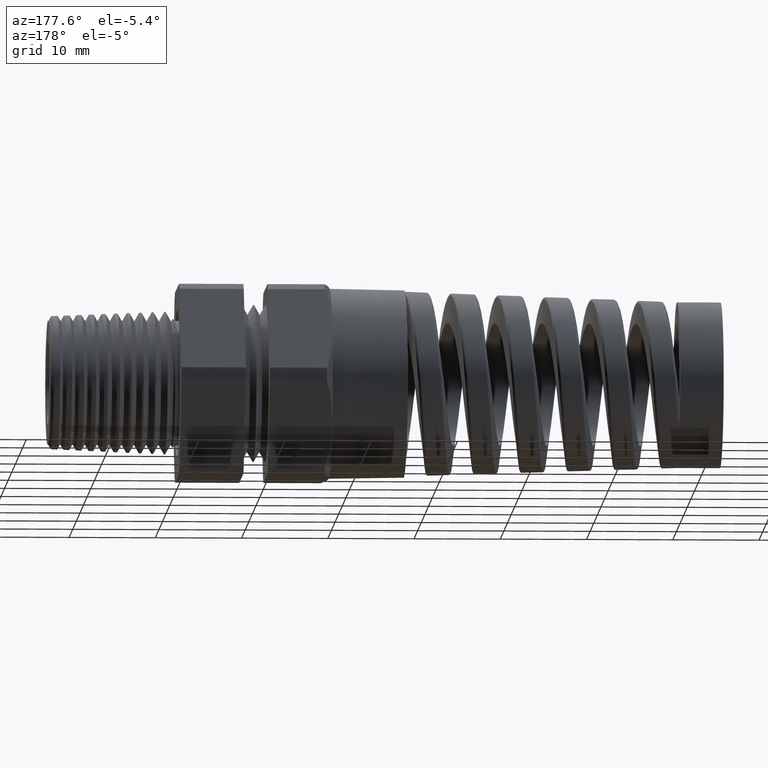
[diagram: clean part render]
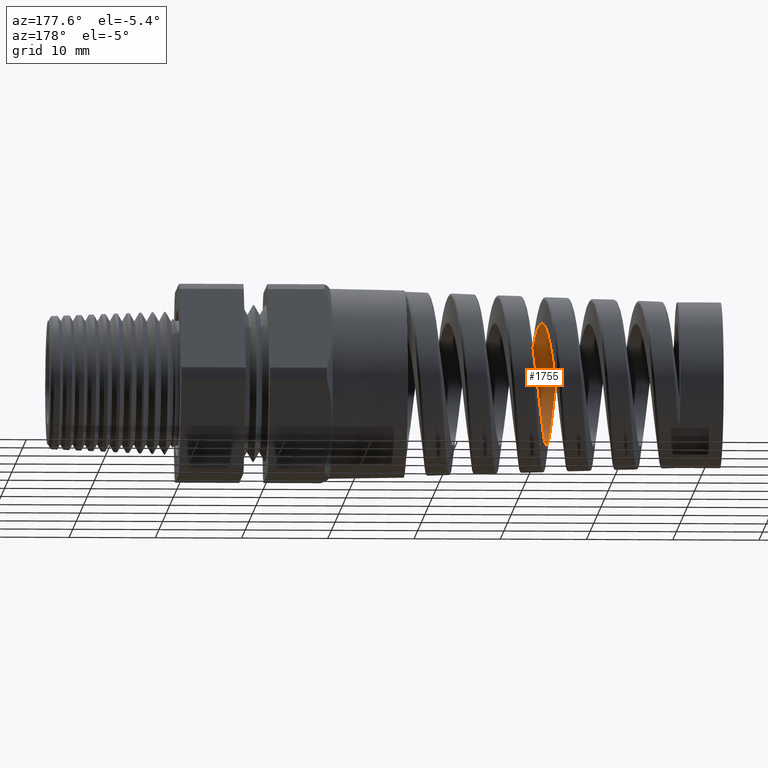
[diagram: same view with one face highlighted and labeled with its STEP entity id]
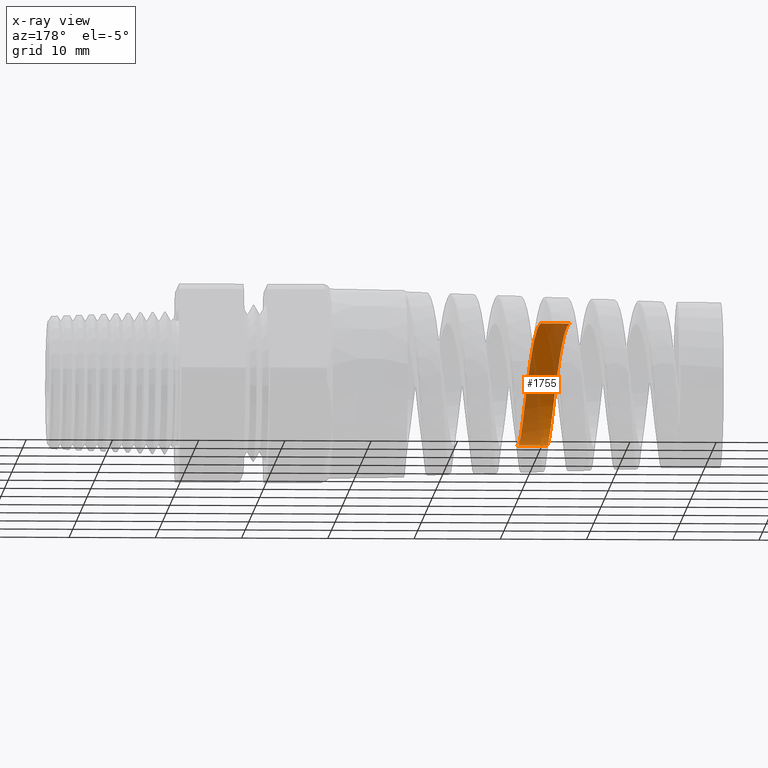
[diagram: x-ray of the same camera — body ghosted, the highlighted face saturated]
A machine part, auxiliary view. The second image highlights one B-rep face of the part: STEP entity #1755.
The next image is the same camera in x-ray: the body ghosted, the highlighted face saturated — about 49% of this face is hidden behind the body in this view.
In plain terms, the highlighted cylindrical surface (partial cylindrical patch) has radius 7.1002 mm, axis along (1, 0, 0).
Its self-contained STEP definition (entity closure, byte-faithful):
#1172 = EDGE_LOOP ( 'NONE', ( #1756, #7995, #7989, #7992 ) ) ;
#1755 = ADVANCED_FACE ( 'NONE', ( #10173 ), #10172, .F. ) ;
#1756 = ORIENTED_EDGE ( 'NONE', *, *, #1757, .F. ) ;
#1757 = EDGE_CURVE ( 'NONE', #1758, #1759, #10278, .T. ) ;
#1758 = VERTEX_POINT ( 'NONE', #10279 ) ;
#1759 = VERTEX_POINT ( 'NONE', #10277 ) ;
#7988 = EDGE_CURVE ( 'NONE', #1759, #7990, #11279, .T. ) ;
#7989 = ORIENTED_EDGE ( 'NONE', *, *, #7993, .F. ) ;
#7990 = VERTEX_POINT ( 'NONE', #11275 ) ;
#7991 = VERTEX_POINT ( 'NONE', #11274 ) ;
#7992 = ORIENTED_EDGE ( 'NONE', *, *, #7988, .F. ) ;
#7993 = EDGE_CURVE ( 'NONE', #7990, #7991, #11273, .T. ) ;
#7994 = EDGE_CURVE ( 'NONE', #1758, #7991, #11228, .T. ) ;
#7995 = ORIENTED_EDGE ( 'NONE', *, *, #7994, .T. ) ;
#10167 = DIRECTION ( 'NONE',  ( 0.0000000000000000000, 0.0000000000000000000, -1.000000000000000000 ) ) ;
#10168 = DIRECTION ( 'NONE',  ( 1.000000000000000000, 0.0000000000000000000, 0.0000000000000000000 ) ) ;
#10169 = AXIS2_PLACEMENT_3D ( 'NONE', #10178, #10168, #10167 ) ;
#10172 = CYLINDRICAL_SURFACE ( 'NONE', #10169, 0.2795341310835476300 ) ;
#10173 = FACE_OUTER_BOUND ( 'NONE', #1172, .T. ) ;
#10178 = CARTESIAN_POINT ( 'NONE',  ( 0.4924815508901369000, 0.0000000000000000000, 0.0000000000000000000 ) ) ;
#10239 = CARTESIAN_POINT ( 'NONE',  ( -1.702713394583856400, -0.1397945371092218200, -0.2422418349943530600 ) ) ;
#10240 = CARTESIAN_POINT ( 'NONE',  ( -1.703839217421740700, -0.1477465002848136500, -0.2374747197051904600 ) ) ;
#10241 = CARTESIAN_POINT ( 'NONE',  ( -1.707183106179958500, -0.1705959400540476600, -0.2221983737497883200 ) ) ;
#10242 = CARTESIAN_POINT ( 'NONE',  ( -1.709391981593069800, -0.1846722046573891500, -0.2106405381590640300 ) ) ;
#10243 = CARTESIAN_POINT ( 'NONE',  ( -1.713842343556300400, -0.2105233505997014500, -0.1848057854647303700 ) ) ;
#10244 = CARTESIAN_POINT ( 'NONE',  ( -1.716093657461465100, -0.2223324716631633900, -0.1704124293647409100 ) ) ;
#10245 = CARTESIAN_POINT ( 'NONE',  ( -1.720524442096653000, -0.2425948723689597700, -0.1400708818353490800 ) ) ;
#10246 = CARTESIAN_POINT ( 'NONE',  ( -1.722726339981393700, -0.2511977423296650700, -0.1240034296068515300 ) ) ;
#10247 = CARTESIAN_POINT ( 'NONE',  ( -1.726077921545133400, -0.2617533567761192200, -0.09853409117333299100 ) ) ;
#10248 = CARTESIAN_POINT ( 'NONE',  ( -1.727203407638249600, -0.2648717340536175800, -0.08981145926629738300 ) ) ;
#10249 = CARTESIAN_POINT ( 'NONE',  ( -1.729431991964394100, -0.2701803372228048800, -0.07228913538204460900 ) ) ;
#10250 = CARTESIAN_POINT ( 'NONE',  ( -1.731650726673886800, -0.2746033445902247800, -0.05459546316220997100 ) ) ;
#10251 = CARTESIAN_POINT ( 'NONE',  ( -1.733868417200032000, -0.2772828826278498900, -0.03656674284231651400 ) ) ;
#10252 = CARTESIAN_POINT ( 'NONE',  ( -1.736093449546979500, -0.2790797195856177200, -0.01836937115197610800 ) ) ;
#10253 = CARTESIAN_POINT ( 'NONE',  ( -1.737214767104330100, -0.2795362515429912200, -0.009142621706091723400 ) ) ;
#10254 = CARTESIAN_POINT ( 'NONE',  ( -1.740570495408392300, -0.2795298677681128900, 0.01847905671585857400 ) ) ;
#10255 = CARTESIAN_POINT ( 'NONE',  ( -1.742773128754881600, -0.2777233592006827500, 0.03662523520993329900 ) ) ;
#10256 = CARTESIAN_POINT ( 'NONE',  ( -1.746095277126906300, -0.2723913656104773900, 0.06344572323102924700 ) ) ;
#10257 = CARTESIAN_POINT ( 'NONE',  ( -1.747205609570427800, -0.2701738926172959600, 0.07231896363061932100 ) ) ;
#10258 = CARTESIAN_POINT ( 'NONE',  ( -1.749443530524703400, -0.2648342649362135900, 0.08992650815129248100 ) ) ;
#10259 = CARTESIAN_POINT ( 'NONE',  ( -1.750568077938548200, -0.2617140046568087700, 0.09863461079123475600 ) ) ;
#10260 = CARTESIAN_POINT ( 'NONE',  ( -1.753909829442726700, -0.2512013318874838900, 0.1239835725159680200 ) ) ;
#10261 = CARTESIAN_POINT ( 'NONE',  ( -1.756118982578678000, -0.2426147543837179900, 0.1400438099630148300 ) ) ;
#10262 = CARTESIAN_POINT ( 'NONE',  ( -1.759455971050310400, -0.2273690359329962600, 0.1628691691750849800 ) ) ;
#10263 = CARTESIAN_POINT ( 'NONE',  ( -1.760578944642468700, -0.2218572894691076300, 0.1703034371422462200 ) ) ;
#10264 = CARTESIAN_POINT ( 'NONE',  ( -1.762812943206366600, -0.2101830784848478800, 0.1845182676909652400 ) ) ;
#10265 = CARTESIAN_POINT ( 'NONE',  ( -1.763921889611639800, -0.2040365909700276600, 0.1912889721992796200 ) ) ;
#10266 = CARTESIAN_POINT ( 'NONE',  ( -1.767242453163503600, -0.1846952476218127200, 0.2106164275238847100 ) ) ;
#10267 = CARTESIAN_POINT ( 'NONE',  ( -1.769447817309708600, -0.1706070148083521600, 0.2221978110750427200 ) ) ;
#10268 = CARTESIAN_POINT ( 'NONE',  ( -1.773931025021824500, -0.1399750871153111800, 0.2426635443065537400 ) ) ;
#10269 = CARTESIAN_POINT ( 'NONE',  ( -1.776160465641953200, -0.1237568300056393600, 0.2513070391365896900 ) ) ;
#10270 = CARTESIAN_POINT ( 'NONE',  ( -1.779485624112650200, -0.09851758032166416100, 0.2617566224973135200 ) ) ;
#10271 = CARTESIAN_POINT ( 'NONE',  ( -1.780593035442565400, -0.08993108353559500800, 0.2648312196464027200 ) ) ;
#10272 = CARTESIAN_POINT ( 'NONE',  ( -1.782818307160383400, -0.07240683417352485100, 0.2701488942236391900 ) ) ;
#10273 = CARTESIAN_POINT ( 'NONE',  ( -1.783942284077534100, -0.06341823137585497800, 0.2724002013293331200 ) ) ;
#10274 = CARTESIAN_POINT ( 'NONE',  ( -1.787289285037589000, -0.03638264351169534500, 0.2777647906945908100 ) ) ;
#10275 = CARTESIAN_POINT ( 'NONE',  ( -1.789491474975657000, -0.01824455947684322200, 0.2795341310835943700 ) ) ;
#10276 = CARTESIAN_POINT ( 'NONE',  ( -1.791710051043558600, 7.157953964899180500E-013, 0.2795341310835475200 ) ) ;
#10277 = CARTESIAN_POINT ( 'NONE',  ( -1.684923578216265500, 1.216158967604468500E-012, -0.2795341310835476300 ) ) ;
#10278 = B_SPLINE_CURVE_WITH_KNOTS ( 'NONE', 3,
 ( #10276, #10275, #10274, #10273, #10272, #10271, #10270, #10269, #10268, #10267, #10266, #10265, #10264, #10263, #10262, #10261, #10260, #10259, #10258, #10257, #10256, #10255, #10254, #10253, #10252, #10251, #10250, #10249, #10248, #10247, #10246, #10245, #10244, #10243, #10242, #10241, #10240, #10239, #10319, #10318, #10317, #10316, #10315, #10314, #10313 ),
 .UNSPECIFIED., .F., .F.,
 ( 4, 2, 2, 2, 2, 2, 2, 2, 2, 2, 2, 2, 2, 1, 2, 2, 2, 2, 2, 2, 2, 2, 4 ),
 ( 0.1023367645172534900, 0.1037311521010017000, 0.1044283458928758200, 0.1051255396847499300, 0.1065199272684981400, 0.1079143148522463700, 0.1086115086441204700, 0.1093087024359945800, 0.1107030900197428100, 0.1114002838116169200, 0.1120974776034910200, 0.1134918651872392400, 0.1141890589791133400, 0.1148862527709874500, 0.1155834465628615600, 0.1162806403547356800, 0.1176750279384838900, 0.1190694155222321000, 0.1204638031059803200, 0.1211609968978544200, 0.1218581906897285300, 0.1232525782734767600, 0.1246469658572249700 ),
 .UNSPECIFIED. ) ;
#10279 = CARTESIAN_POINT ( 'NONE',  ( -1.791710051043558600, 7.157953964899180500E-013, 0.2795341310835475200 ) ) ;
#10313 = CARTESIAN_POINT ( 'NONE',  ( -1.684923578216265500, 1.216158967604468500E-012, -0.2795341310835476300 ) ) ;
#10314 = CARTESIAN_POINT ( 'NONE',  ( -1.687141141867013000, -0.01821473733931364500, -0.2795341310836269000 ) ) ;
#10315 = CARTESIAN_POINT ( 'NONE',  ( -1.689360609987085300, -0.03642032763442997600, -0.2777653536702450700 ) ) ;
#10316 = CARTESIAN_POINT ( 'NONE',  ( -1.693850419075899400, -0.07262747272094413600, -0.2705647467256664900 ) ) ;
#10317 = CARTESIAN_POINT ( 'NONE',  ( -1.696055548072190600, -0.09008681595562563500, -0.2652464154753613700 ) ) ;
#10318 = CARTESIAN_POINT ( 'NONE',  ( -1.699374283450060700, -0.1153384100774630800, -0.2547928037134610200 ) ) ;
#10319 = CARTESIAN_POINT ( 'NONE',  ( -1.700482269124897500, -0.1235982533353136700, -0.2508925885702336700 ) ) ;
#11225 = DIRECTION ( 'NONE',  ( 1.000000000000000000, 0.0000000000000000000, 0.0000000000000000000 ) ) ;
#11226 = VECTOR ( 'NONE', #11225, 39.37007874015748100 ) ;
#11227 = CARTESIAN_POINT ( 'NONE',  ( 0.4924815508901369000, 3.423305788839033100E-017, 0.2795341310835476300 ) ) ;
#11228 = LINE ( 'NONE', #11227, #11226 ) ;
#11229 = CARTESIAN_POINT ( 'NONE',  ( -1.661530709836439100, 1.857443210067193900E-014, 0.2795341310835476300 ) ) ;
#11230 = CARTESIAN_POINT ( 'NONE',  ( -1.660416716528183100, -0.009114306675211233200, 0.2795341310835483000 ) ) ;
#11231 = CARTESIAN_POINT ( 'NONE',  ( -1.659300780521410600, -0.01824894017524123600, 0.2790894663531680600 ) ) ;
#11232 = CARTESIAN_POINT ( 'NONE',  ( -1.657052992167255400, -0.03655853586994223200, 0.2772858227567031600 ) ) ;
#11233 = CARTESIAN_POINT ( 'NONE',  ( -1.655924209993741000, -0.04570730781618108400, 0.2759236093684884800 ) ) ;
#11234 = CARTESIAN_POINT ( 'NONE',  ( -1.652569703635154500, -0.07261794002721776200, 0.2705561461938176800 ) ) ;
#11235 = CARTESIAN_POINT ( 'NONE',  ( -1.650351466685445700, -0.09004314279814559800, 0.2652665424473402100 ) ) ;
#11236 = CARTESIAN_POINT ( 'NONE',  ( -1.646988395062508400, -0.1154003290284889200, 0.2547661445665916300 ) ) ;
#11237 = CARTESIAN_POINT ( 'NONE',  ( -1.645855382703835600, -0.1237655601614027400, 0.2508106492171424100 ) ) ;
#11238 = CARTESIAN_POINT ( 'NONE',  ( -1.643601673727128800, -0.1399821376377717000, 0.2421340471415579800 ) ) ;
#11239 = CARTESIAN_POINT ( 'NONE',  ( -1.642483519170739600, -0.1478206473863617800, 0.2374267045722295900 ) ) ;
#11240 = CARTESIAN_POINT ( 'NONE',  ( -1.639139626840006500, -0.1705468769947580400, 0.2222280512816514900 ) ) ;
#11241 = CARTESIAN_POINT ( 'NONE',  ( -1.636923238573984700, -0.1846526069522895500, 0.2106703189455013100 ) ) ;
#11242 = CARTESIAN_POINT ( 'NONE',  ( -1.632422149836775200, -0.2106982148121602500, 0.1846207756831412000 ) ) ;
#11243 = CARTESIAN_POINT ( 'NONE',  ( -1.630185760428265700, -0.2223390497174708400, 0.1704003107455281400 ) ) ;
#11244 = CARTESIAN_POINT ( 'NONE',  ( -1.626840786731127200, -0.2375098807169147800, 0.1476864385282975800 ) ) ;
#11245 = CARTESIAN_POINT ( 'NONE',  ( -1.625724628813286300, -0.2421998008541999000, 0.1398656737924349700 ) ) ;
#11246 = CARTESIAN_POINT ( 'NONE',  ( -1.623480415107500600, -0.2508327011006930000, 0.1237178495519396500 ) ) ;
#11247 = CARTESIAN_POINT ( 'NONE',  ( -1.622346072592190100, -0.2547936898612124200, 0.1153425310661580800 ) ) ;
#11248 = CARTESIAN_POINT ( 'NONE',  ( -1.618971076396723300, -0.2653285771299018200, 0.08987574923012887900 ) ) ;
#11249 = CARTESIAN_POINT ( 'NONE',  ( -1.616755670865446000, -0.2706023039889621800, 0.07243293932383937400 ) ) ;
#11250 = CARTESIAN_POINT ( 'NONE',  ( -1.612298029945315600, -0.2777211731097036800, 0.03664815997830790700 ) ) ;
#11251 = CARTESIAN_POINT ( 'NONE',  ( -1.610034027710513600, -0.2795438824336601800, 0.01811973972778785700 ) ) ;
#11252 = CARTESIAN_POINT ( 'NONE',  ( -1.605562823787670500, -0.2795242994405683400, -0.01841937013435214100 ) ) ;
#11253 = CARTESIAN_POINT ( 'NONE',  ( -1.603341205974052400, -0.2777403336378543300, -0.03654396236058245200 ) ) ;
#11254 = CARTESIAN_POINT ( 'NONE',  ( -1.599972367438518500, -0.2723793011010644500, -0.06350435174648080800 ) ) ;
#11255 = CARTESIAN_POINT ( 'NONE',  ( -1.598837855857557600, -0.2701252417286966200, -0.07249770150033507700 ) ) ;
#11256 = CARTESIAN_POINT ( 'NONE',  ( -1.596592261386640600, -0.2647880437162286000, -0.09006028451404710100 ) ) ;
#11257 = CARTESIAN_POINT ( 'NONE',  ( -1.595477243213091700, -0.2617045326285355500, -0.09865614274469548800 ) ) ;
#11258 = CARTESIAN_POINT ( 'NONE',  ( -1.592137992922986600, -0.2512379285394013600, -0.1238979400137736500 ) ) ;
#11259 = CARTESIAN_POINT ( 'NONE',  ( -1.589919833615239400, -0.2426504250791364200, -0.1400033785131021300 ) ) ;
#11260 = CARTESIAN_POINT ( 'NONE',  ( -1.585404920879131400, -0.2221298649024703900, -0.1707000231534220300 ) ) ;
#11261 = CARTESIAN_POINT ( 'NONE',  ( -1.583177574271941600, -0.2105134157738047000, -0.1848111648864515500 ) ) ;
#11262 = CARTESIAN_POINT ( 'NONE',  ( -1.579829304969742100, -0.1911922795797397800, -0.2041268632038383300 ) ) ;
#11263 = CARTESIAN_POINT ( 'NONE',  ( -1.578711658794572600, -0.1844308615026789300, -0.2102586274022517400 ) ) ;
#11264 = CARTESIAN_POINT ( 'NONE',  ( -1.576464783177301800, -0.1702530908690316800, -0.2218948357245848800 ) ) ;
#11265 = CARTESIAN_POINT ( 'NONE',  ( -1.575331502273382000, -0.1628029996144408600, -0.2274172245048649300 ) ) ;
#11266 = CARTESIAN_POINT ( 'NONE',  ( -1.571968025271106400, -0.1399222491146793200, -0.2426878975569459500 ) ) ;
#11267 = CARTESIAN_POINT ( 'NONE',  ( -1.569754384214943100, -0.1238521760429289000, -0.2512636880107437200 ) ) ;
#11268 = CARTESIAN_POINT ( 'NONE',  ( -1.565291069723472300, -0.09011029125792760500, -0.2652412822935759100 ) ) ;
#11269 = CARTESIAN_POINT ( 'NONE',  ( -1.563024003061281900, -0.07228946133940086800, -0.2706410956467317800 ) ) ;
#11270 = CARTESIAN_POINT ( 'NONE',  ( -1.558553046343431800, -0.03648831799322158800, -0.2777426354084473500 ) ) ;
#11271 = CARTESIAN_POINT ( 'NONE',  ( -1.556328747140895500, -0.01835867908649111600, -0.2795341310836171300 ) ) ;
#11272 = CARTESIAN_POINT ( 'NONE',  ( -1.554081803352897400, 1.058000975693145500E-012, -0.2795341310835475800 ) ) ;
#11273 = B_SPLINE_CURVE_WITH_KNOTS ( 'NONE', 3,
 ( #11272, #11271, #11270, #11269, #11268, #11267, #11266, #11265, #11264, #11263, #11262, #11261, #11260, #11259, #11258, #11257, #11256, #11255, #11254, #11253, #11252, #11251, #11250, #11249, #11248, #11247, #11246, #11245, #11244, #11243, #11242, #11241, #11240, #11239, #11238, #11237, #11236, #11235, #11234, #11233, #11232, #11231, #11230, #11229 ),
 .UNSPECIFIED., .F., .F.,
 ( 4, 2, 2, 2, 2, 2, 2, 2, 2, 2, 2, 2, 2, 2, 2, 2, 2, 2, 2, 2, 2, 4 ),
 ( 0.1382225219490066400, 0.1396204049504841400, 0.1410182879519616400, 0.1424161709534391400, 0.1431151124541778800, 0.1438140539549166200, 0.1452119369563941200, 0.1466098199578716200, 0.1473087614586103800, 0.1480077029593491200, 0.1494055859608266200, 0.1508034689623041200, 0.1522013519637816200, 0.1529002934645203600, 0.1535992349652591200, 0.1549971179667366000, 0.1563950009682141000, 0.1570939424689528400, 0.1577928839696916000, 0.1591907669711690700, 0.1598897084719078400, 0.1605886499726465700 ),
 .UNSPECIFIED. ) ;
#11274 = CARTESIAN_POINT ( 'NONE',  ( -1.661530709836439100, 1.857443210067193900E-014, 0.2795341310835476300 ) ) ;
#11275 = CARTESIAN_POINT ( 'NONE',  ( -1.554081803352897400, 1.058000975693145500E-012, -0.2795341310835475800 ) ) ;
#11276 = DIRECTION ( 'NONE',  ( 1.000000000000000000, 0.0000000000000000000, 0.0000000000000000000 ) ) ;
#11277 = VECTOR ( 'NONE', #11276, 39.37007874015748100 ) ;
#11278 = CARTESIAN_POINT ( 'NONE',  ( 0.4924815508901369000, 0.0000000000000000000, -0.2795341310835476300 ) ) ;
#11279 = LINE ( 'NONE', #11278, #11277 ) ;